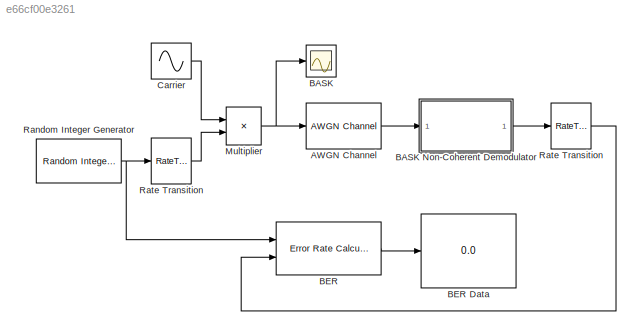
MODEL slx_e66cf00e3261
KIND model
BLOCK [Reference] AWGN Channel  REF=commchan3/AWGN
Channel
  EbNodB = 80
  EsNodB = 10
  InputProcessing = Inherited (this choice will be removed - see release notes)
  Ports = [1, 1]
  Ps = 12.5
  SNRdB = 12
  SourceBlock = commchan3/AWGN\nChannel
  SourceType = AWGN Channel
  Tsym = 1e-3
  UserDataPersistent = on
  bitsPerSym = 1
  noiseMode = Signal to noise ratio  (Eb/No)
  seed = randseed
  variance = 0
BLOCK [Scope] BASK
  DataFormat = StructureWithTime
  Floating = off
  NumInputPorts = 1
  Ports = [1]
  SampleTime = 0
  ShowLegends = off
  YMax = 6
  YMin = -6
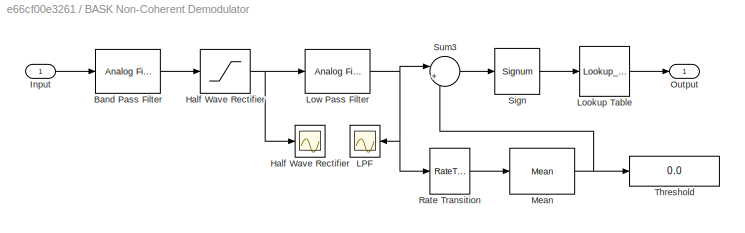
BLOCK [SubSystem] BASK Non-Coherent Demodulator
  Ports = [1, 1]
  RequestExecContextInheritance = off
BLOCK [Reference] BASK Non-Coherent Demodulator/Band Pass Filter  REF=dsparch4/Analog
Filter Design
  N = 9
  Ports = [1, 1]
  Rp = 2
  Rs = 40
  SourceBlock = dsparch4/Analog\nFilter Design
  SourceType = Analog Filter Design
  Whi = 42000*pi
  Wlo = 38000*pi
  filttype = Bandpass
  method = Butterworth
BLOCK [Saturate] BASK Non-Coherent Demodulator/Half Wave Rectifier
  InputPortMap = u0
  LowerLimit = 0
  Ports = [1, 1]
  UpperLimit = 2000
BLOCK [Scope] BASK Non-Coherent Demodulator/Half Wave Rectifier 
  DataFormat = StructureWithTime
  Floating = off
  NumInputPorts = 1
  Ports = [1]
  SampleTime = 0
  SaveName = ScopeData1
  ShowLegends = off
  YMax = 6
  YMin = -6
BLOCK [Inport] BASK Non-Coherent Demodulator/Input
  IconDisplay = Port number
BLOCK [Scope] BASK Non-Coherent Demodulator/LPF
  DataFormat = StructureWithTime
  Floating = off
  NumInputPorts = 1
  Ports = [1]
  SampleTime = 0
  SaveName = ScopeData2
  ShowLegends = off
  YMax = 6
  YMin = -6
BLOCK [Lookup_n-D] BASK Non-Coherent Demodulator/Lookup Table
  BreakpointsForDimension1 = [-1, 0, 1]
  InternalRulePriority = Speed
  NumberOfTableDimensions = 1
  Ports = [1, 1]
  RndMeth = Simplest
  Table = [0, 0, 1]
BLOCK [Reference] BASK Non-Coherent Demodulator/Low Pass Filter  REF=dsparch4/Analog
Filter Design
  N = 9
  Ports = [1, 1]
  Rp = 2
  Rs = 40
  SourceBlock = dsparch4/Analog\nFilter Design
  SourceType = Analog Filter Design
  Whi = 46000*pi
  Wlo = 4000*pi
  filttype = Lowpass
  method = Butterworth
BLOCK [Reference] BASK Non-Coherent Demodulator/Mean  REF=dspstat3/Mean
  InputProcessing = Inherited (this choice will be removed - see release notes)
  LockScale = off
  Ports = [1, 1]
  SourceBlock = dspstat3/Mean
  SourceType = Mean
  UserDataPersistent = on
  accumDataTypeStr = Inherit: Same as input
  accumFracLength = 30
  accumLastDataTypeStr = Inherit: Same as input
  accumMode = Same as input
  accumWordLength = 32
  additionalParams = off
  allowOverrides = on
  dimension = 1
  directionMode = Each column
  outputDataTypeStr = Inherit: Same as accumulator
  outputFracLength = 30
  outputLastDataTypeStr = Inherit: Same as accumulator
  outputMax = []
  outputMin = []
  outputMode = Same as accumulator
  outputWordLength = 32
  overflowMode = off
  reset_popup = None
  roiEnable = off
  roiFlag = off
  roiOutput = Individual statistics for each ROI
  roiPortion = Entire ROI
  roiType = Rectangles
  roundingMode = Floor
  run = on
  treatSBRowAsCol = on
BLOCK [Outport] BASK Non-Coherent Demodulator/Output
  IconDisplay = Port number
BLOCK [RateTransition] BASK Non-Coherent Demodulator/Rate Transition 
  OutPortSampleTime = 2e-6
BLOCK [Signum] BASK Non-Coherent Demodulator/Sign
BLOCK [Sum] BASK Non-Coherent Demodulator/Sum3
  IconShape = round
  InputSameDT = off
  Inputs = |+-
  OutDataTypeStr = Inherit: Inherit via internal rule
  Ports = [2, 1]
  SaturateOnIntegerOverflow = off
BLOCK [Display] BASK Non-Coherent Demodulator/Threshold
  Decimation = 1
  Ports = [1]
BLOCK [Reference] BER  REF=commsink2/Error Rate
Calculation
  N = 3
  PMode = Port
  Ports = [2, 1]
  RsMode2 = off
  SourceBlock = commsink2/Error Rate\nCalculation
  SourceType = Error Rate Calculation
  WsName = ErrorVec
  cp_mode = Entire frame
  maxBits = 1e6
  numErr = 100
  st_delay = 0
  stop = off
  subframe = []
BLOCK [Display] BER Data
  Decimation = 1
  Format = long
  Ports = [1]
BLOCK [Sin] Carrier
  Amplitude = 5
  Frequency = 40000*pi
  Ports = [0, 1]
  SampleTime = 2e-6
BLOCK [Product] Multiplier 
  InputSameDT = off
  OutDataTypeStr = Inherit: Inherit via internal rule
  Ports = [2, 1]
  SaturateOnIntegerOverflow = off
BLOCK [Reference] Random Integer Generator  REF=commrandsrc2/Random Integer
Generator
  Ports = [0, 1]
  SourceBlock = commrandsrc2/Random Integer\nGenerator
  SourceType = Random Integer Generator
  Ts = 1e-3
  frameBased = off
  mul = 2
  orient = on
  outDataType = double
  sampPerFrame = 50
  seed = randseed
BLOCK [RateTransition] Rate Transition
  OutPortSampleTime = 2e-6
BLOCK [RateTransition] Rate Transition  
  OutPortSampleTime = 1e-3
LINE AWGN Channel:1 -> BASK Non-Coherent Demodulator:1
LINE BASK Non-Coherent Demodulator/Band Pass Filter:1 -> BASK Non-Coherent Demodulator/Half Wave Rectifier:1
NET BASK Non-Coherent Demodulator/Half Wave Rectifier:1 -> BASK Non-Coherent Demodulator/Half Wave Rectifier :1, BASK Non-Coherent Demodulator/Low Pass Filter:1
LINE BASK Non-Coherent Demodulator/Input:1 -> BASK Non-Coherent Demodulator/Band Pass Filter:1
LINE BASK Non-Coherent Demodulator/Lookup Table:1 -> BASK Non-Coherent Demodulator/Output:1
NET BASK Non-Coherent Demodulator/Low Pass Filter:1 -> BASK Non-Coherent Demodulator/LPF:1, BASK Non-Coherent Demodulator/Rate Transition :1, BASK Non-Coherent Demodulator/Sum3:1
NET BASK Non-Coherent Demodulator/Mean:1 -> BASK Non-Coherent Demodulator/Sum3:2, BASK Non-Coherent Demodulator/Threshold:1
LINE BASK Non-Coherent Demodulator/Rate Transition :1 -> BASK Non-Coherent Demodulator/Mean:1
LINE BASK Non-Coherent Demodulator/Sign:1 -> BASK Non-Coherent Demodulator/Lookup Table:1
LINE BASK Non-Coherent Demodulator/Sum3:1 -> BASK Non-Coherent Demodulator/Sign:1
LINE BASK Non-Coherent Demodulator:1 -> Rate Transition  :1
LINE BER:1 -> BER Data:1
LINE Carrier:1 -> Multiplier :1
NET Multiplier :1 -> AWGN Channel:1, BASK:1
NET Random Integer Generator:1 -> BER:1, Rate Transition:1
LINE Rate Transition  :1 -> BER:2
LINE Rate Transition:1 -> Multiplier :2
note: NET lines group one-source signal fan-out (src -> all destinations, sorted); 1:1 wires keep LINE
